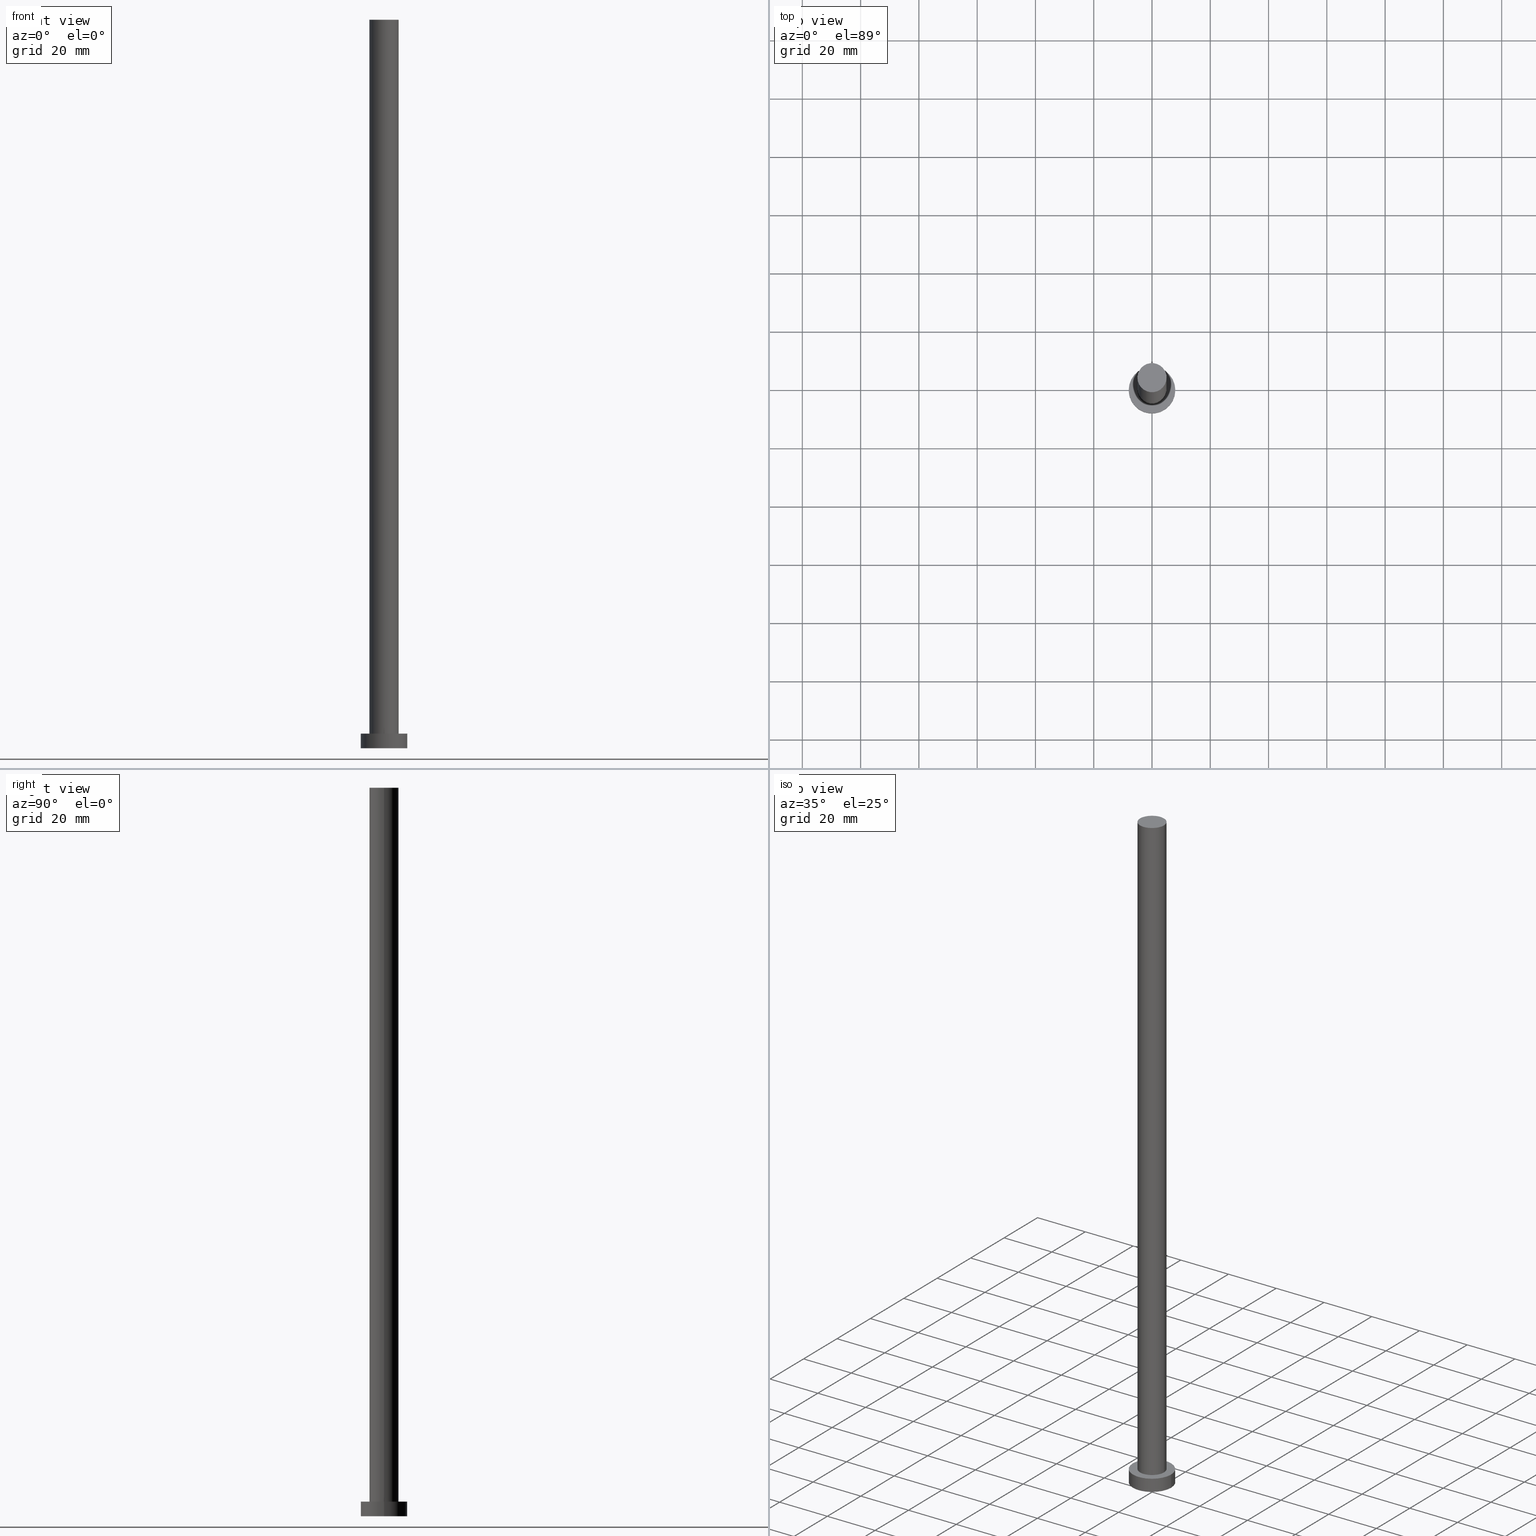
[diagram: canonical four-view strip — front | top / right | iso, engineering-drawing reading convention]
A machine part, canonical four-view strip (front | top / right | iso — engineering-drawing reading convention). The complete STEP part file that produces these views, byte-faithful:
ISO-10303-21;
HEADER;
FILE_DESCRIPTION (( 'STEP AP203' ),
    '1' );
FILE_NAME ('6a87.STEP',
    '2023-02-13T09:59:26',
    ( '' ),
    ( '' ),
    'SwSTEP 2.0',
    'SolidWorks 2019',
    '' );
FILE_SCHEMA (( 'CONFIG_CONTROL_DESIGN' ));
ENDSEC;

DATA;
#1 = CIRCLE ( 'NONE', #31, 8.000000000000000000 ) ;
#2 = DIRECTION ( 'NONE',  ( 1.000000000000000000, 0.000000000000000000, -0.000000000000000000 ) ) ;
#3 = DIRECTION ( 'NONE',  ( 0.000000000000000000, 0.000000000000000000, 1.000000000000000000 ) ) ;
#4 = CIRCLE ( 'NONE', #104, 5.000000000000000888 ) ;
#5 = CC_DESIGN_SECURITY_CLASSIFICATION ( #217, ( #207 ) ) ;
#6 = DIRECTION ( 'NONE',  ( 1.000000000000000000, 0.000000000000000000, 0.000000000000000000 ) ) ;
#7 = DIRECTION ( 'NONE',  ( 1.000000000000000000, 0.000000000000000000, 0.000000000000000000 ) ) ;
#8 = DIRECTION ( 'NONE',  ( 1.000000000000000000, 0.000000000000000000, 0.000000000000000000 ) ) ;
#9 = DIRECTION ( 'NONE',  ( 1.000000000000000000, 0.000000000000000000, -0.000000000000000000 ) ) ;
#10 = PERSON_AND_ORGANIZATION ( #82, #249 ) ;
#11 = CYLINDRICAL_SURFACE ( 'NONE', #169, 5.000000000000000888 ) ;
#12 = ORIENTED_EDGE ( 'NONE', *, *, #142, .F. ) ;
#13 = CARTESIAN_POINT ( 'NONE',  ( 0.000000000000000000, 0.000000000000000000, 5.000000000000000000 ) ) ;
#14 = CARTESIAN_POINT ( 'NONE',  ( 0.000000000000000000, 0.000000000000000000, 250.0000000000000000 ) ) ;
#15 = APPLICATION_PROTOCOL_DEFINITION ( 'international standard', 'config_control_design', 1994, #84 ) ;
#16 = CC_DESIGN_PERSON_AND_ORGANIZATION_ASSIGNMENT ( #128, #208, ( #217 ) ) ;
#17 = VECTOR ( 'NONE', #138, 1000.000000000000000 ) ;
#18 = CARTESIAN_POINT ( 'NONE',  ( 0.000000000000000000, 0.000000000000000000, 5.000000000000000000 ) ) ;
#19 = SHAPE_DEFINITION_REPRESENTATION ( #132, #97 ) ;
#20 = CARTESIAN_POINT ( 'NONE',  ( 0.000000000000000000, 0.000000000000000000, 5.000000000000000000 ) ) ;
#21 = CARTESIAN_POINT ( 'NONE',  ( -8.000000000000000000, 0.000000000000000000, 0.000000000000000000 ) ) ;
#22 = VECTOR ( 'NONE', #203, 1000.000000000000000 ) ;
#23 = CARTESIAN_POINT ( 'NONE',  ( 0.000000000000000000, 0.000000000000000000, 5.000000000000000000 ) ) ;
#24 = EDGE_LOOP ( 'NONE', ( #28, #223, #238, #145 ) ) ;
#25 = PLANE ( 'NONE',  #175 ) ;
#26 = COORDINATED_UNIVERSAL_TIME_OFFSET ( 1, 0, .AHEAD. ) ;
#27 = DIRECTION ( 'NONE',  ( 0.000000000000000000, 0.000000000000000000, 1.000000000000000000 ) ) ;
#28 = ORIENTED_EDGE ( 'NONE', *, *, #191, .F. ) ;
#29 = AXIS2_PLACEMENT_3D ( 'NONE', #18, #158, #106 ) ;
#30 = AXIS2_PLACEMENT_3D ( 'NONE', #13, #114, #190 ) ;
#31 = AXIS2_PLACEMENT_3D ( 'NONE', #23, #110, #6 ) ;
#32 = ORIENTED_EDGE ( 'NONE', *, *, #126, .F. ) ;
#33 = FACE_OUTER_BOUND ( 'NONE', #210, .T. ) ;
#34 = EDGE_LOOP ( 'NONE', ( #209, #246 ) ) ;
#35 = CC_DESIGN_PERSON_AND_ORGANIZATION_ASSIGNMENT ( #143, #160, ( #207 ) ) ;
#36 = ORIENTED_EDGE ( 'NONE', *, *, #154, .T. ) ;
#37 = AXIS2_PLACEMENT_3D ( 'NONE', #202, #88, #204 ) ;
#38 = APPROVAL_DATE_TIME ( #100, #134 ) ;
#39 =( NAMED_UNIT ( * ) SI_UNIT ( $, .STERADIAN. ) SOLID_ANGLE_UNIT ( ) );
#40 = DIRECTION ( 'NONE',  ( -0.000000000000000000, -0.000000000000000000, -1.000000000000000000 ) ) ;
#41 = APPROVAL_PERSON_ORGANIZATION ( #195, #250, #78 ) ;
#42 = EDGE_LOOP ( 'NONE', ( #90, #230 ) ) ;
#43 = CARTESIAN_POINT ( 'NONE',  ( -5.000000000000000888, 0.000000000000000000, 5.000000000000000000 ) ) ;
#44 = CARTESIAN_POINT ( 'NONE',  ( 5.000000000000000888, 6.123233995736767268E-16, 250.0000000000000000 ) ) ;
#45 = FACE_OUTER_BOUND ( 'NONE', #235, .T. ) ;
#46 = APPROVAL_ROLE ( '' ) ;
#47 = LOCAL_TIME ( 10, 59, 26.00000000000000000, #176 ) ;
#48 = VERTEX_POINT ( 'NONE', #183 ) ;
#49 = PLANE ( 'NONE',  #87 ) ;
#50 = MECHANICAL_CONTEXT ( 'NONE', #71, 'mechanical' ) ;
#51 = DIRECTION ( 'NONE',  ( -1.000000000000000000, 0.000000000000000000, 0.000000000000000000 ) ) ;
#52 = LOCAL_TIME ( 10, 59, 26.00000000000000000, #63 ) ;
#53 = ORIENTED_EDGE ( 'NONE', *, *, #137, .F. ) ;
#54 = EDGE_CURVE ( 'NONE', #152, #48, #99, .T. ) ;
#55 = CARTESIAN_POINT ( 'NONE',  ( 0.000000000000000000, 0.000000000000000000, 0.000000000000000000 ) ) ;
#56 = ORIENTED_EDGE ( 'NONE', *, *, #59, .F. ) ;
#57 =( NAMED_UNIT ( * ) PLANE_ANGLE_UNIT ( ) SI_UNIT ( $, .RADIAN. ) );
#58 = ORIENTED_EDGE ( 'NONE', *, *, #214, .F. ) ;
#59 = EDGE_CURVE ( 'NONE', #216, #219, #74, .T. ) ;
#60 = EDGE_LOOP ( 'NONE', ( #53, #107 ) ) ;
#61 = VERTEX_POINT ( 'NONE', #109 ) ;
#62 = APPROVAL_PERSON_ORGANIZATION ( #98, #134, #115 ) ;
#63 = COORDINATED_UNIVERSAL_TIME_OFFSET ( 1, 0, .AHEAD. ) ;
#64 = CARTESIAN_POINT ( 'NONE',  ( -8.000000000000000000, 0.000000000000000000, 5.000000000000000000 ) ) ;
#65 = CARTESIAN_POINT ( 'NONE',  ( 8.000000000000000000, 9.797174393178825657E-16, 0.000000000000000000 ) ) ;
#66 = FACE_BOUND ( 'NONE', #60, .T. ) ;
#67 = SECURITY_CLASSIFICATION_LEVEL ( 'unclassified' ) ;
#68 = CARTESIAN_POINT ( 'NONE',  ( 0.000000000000000000, 0.000000000000000000, 5.000000000000000000 ) ) ;
#69 = CC_DESIGN_APPROVAL ( #250, ( #207 ) ) ;
#70 = CARTESIAN_POINT ( 'NONE',  ( -8.000000000000000000, 0.000000000000000000, 5.000000000000000000 ) ) ;
#71 = APPLICATION_CONTEXT ( 'configuration controlled 3d designs of mechanical parts and assemblies' ) ;
#72 = CYLINDRICAL_SURFACE ( 'NONE', #30, 8.000000000000000000 ) ;
#73 = CC_DESIGN_PERSON_AND_ORGANIZATION_ASSIGNMENT ( #237, #218, ( #211 ) ) ;
#74 = CIRCLE ( 'NONE', #229, 5.000000000000000888 ) ;
#75 = VERTEX_POINT ( 'NONE', #43 ) ;
#76 = LOCAL_TIME ( 10, 59, 26.00000000000000000, #165 ) ;
#77 = APPROVAL ( #240, 'NEUR�EN�' ) ;
#78 = APPROVAL_ROLE ( '' ) ;
#79 = CALENDAR_DATE ( 2023, 13, 2 ) ;
#80 = ADVANCED_FACE ( 'NONE', ( #255 ), #123, .T. ) ;
#81 = CIRCLE ( 'NONE', #222, 8.000000000000000000 ) ;
#82 = PERSON ( 'NEUR�EN�', 'NEUR�EN�', 'NEUR�EN�', ('NEUR�EN�'), ('NEUR�EN�'), ('NEUR�EN�') ) ;
#83 = DATE_AND_TIME ( #231, #192 ) ;
#84 = APPLICATION_CONTEXT ( 'configuration controlled 3d designs of mechanical parts and assemblies' ) ;
#85 = CARTESIAN_POINT ( 'NONE',  ( 0.000000000000000000, 0.000000000000000000, 250.0000000000000000 ) ) ;
#86 = AXIS2_PLACEMENT_3D ( 'NONE', #227, #186, #8 ) ;
#87 = AXIS2_PLACEMENT_3D ( 'NONE', #129, #185, #9 ) ;
#88 = DIRECTION ( 'NONE',  ( -0.000000000000000000, -0.000000000000000000, -1.000000000000000000 ) ) ;
#89 = CALENDAR_DATE ( 2023, 13, 2 ) ;
#90 = ORIENTED_EDGE ( 'NONE', *, *, #244, .F. ) ;
#91 = AXIS2_PLACEMENT_3D ( 'NONE', #136, #182, #239 ) ;
#92 = CC_DESIGN_DATE_AND_TIME_ASSIGNMENT ( #105, #151, ( #200 ) ) ;
#93 = ORIENTED_EDGE ( 'NONE', *, *, #184, .T. ) ;
#94 = LOCAL_TIME ( 10, 59, 26.00000000000000000, #177 ) ;
#95 = CARTESIAN_POINT ( 'NONE',  ( 0.000000000000000000, 0.000000000000000000, 0.000000000000000000 ) ) ;
#96 =( GEOMETRIC_REPRESENTATION_CONTEXT ( 3 ) GLOBAL_UNCERTAINTY_ASSIGNED_CONTEXT ( ( #122 ) ) GLOBAL_UNIT_ASSIGNED_CONTEXT ( ( #178, #57, #39 ) ) REPRESENTATION_CONTEXT ( 'NONE', 'WORKASPACE' ) );
#97 = ADVANCED_BREP_SHAPE_REPRESENTATION ( '6a87', ( #232, #167 ), #96 ) ;
#98 = PERSON_AND_ORGANIZATION ( #82, #249 ) ;
#99 = CIRCLE ( 'NONE', #86, 8.000000000000000000 ) ;
#100 = DATE_AND_TIME ( #79, #94 ) ;
#101 = AXIS2_PLACEMENT_3D ( 'NONE', #150, #189, #7 ) ;
#102 = APPROVAL_STATUS ( 'not_yet_approved' ) ;
#103 = DIRECTION ( 'NONE',  ( -1.000000000000000000, 0.000000000000000000, 0.000000000000000000 ) ) ;
#104 = AXIS2_PLACEMENT_3D ( 'NONE', #68, #135, #130 ) ;
#105 = DATE_AND_TIME ( #201, #52 ) ;
#106 = DIRECTION ( 'NONE',  ( 1.000000000000000000, 0.000000000000000000, 0.000000000000000000 ) ) ;
#107 = ORIENTED_EDGE ( 'NONE', *, *, #193, .F. ) ;
#108 = DIRECTION ( 'NONE',  ( 0.000000000000000000, 0.000000000000000000, 1.000000000000000000 ) ) ;
#109 = CARTESIAN_POINT ( 'NONE',  ( 5.000000000000000888, 6.123233995736767268E-16, 5.000000000000000000 ) ) ;
#110 = DIRECTION ( 'NONE',  ( 0.000000000000000000, 0.000000000000000000, 1.000000000000000000 ) ) ;
#111 = AXIS2_PLACEMENT_3D ( 'NONE', #198, #140, #103 ) ;
#112 = ORIENTED_EDGE ( 'NONE', *, *, #119, .F. ) ;
#113 = APPROVAL_DATE_TIME ( #228, #77 ) ;
#114 = DIRECTION ( 'NONE',  ( -0.000000000000000000, -0.000000000000000000, -1.000000000000000000 ) ) ;
#115 = APPROVAL_ROLE ( '' ) ;
#116 = LINE ( 'NONE', #234, #197 ) ;
#117 = CLOSED_SHELL ( 'NONE', ( #147, #180, #80, #171, #157, #252, #225 ) ) ;
#118 = ORIENTED_EDGE ( 'NONE', *, *, #154, .F. ) ;
#119 = EDGE_CURVE ( 'NONE', #48, #152, #1, .T. ) ;
#120 = ORIENTED_EDGE ( 'NONE', *, *, #191, .T. ) ;
#121 = CARTESIAN_POINT ( 'NONE',  ( -5.000000000000000888, 0.000000000000000000, 250.0000000000000000 ) ) ;
#122 = UNCERTAINTY_MEASURE_WITH_UNIT (LENGTH_MEASURE( 1.000000000000000082E-05 ), #178, 'distance_accuracy_value', 'NONE');
#123 = CYLINDRICAL_SURFACE ( 'NONE', #37, 8.000000000000000000 ) ;
#124 = APPROVAL_PERSON_ORGANIZATION ( #10, #77, #46 ) ;
#125 = DIRECTION ( 'NONE',  ( 0.000000000000000000, 0.000000000000000000, 1.000000000000000000 ) ) ;
#126 = EDGE_CURVE ( 'NONE', #219, #216, #224, .T. ) ;
#127 = ORIENTED_EDGE ( 'NONE', *, *, #119, .T. ) ;
#128 = PERSON_AND_ORGANIZATION ( #82, #249 ) ;
#129 = CARTESIAN_POINT ( 'NONE',  ( 0.000000000000000000, 0.000000000000000000, 250.0000000000000000 ) ) ;
#130 = DIRECTION ( 'NONE',  ( 1.000000000000000000, 0.000000000000000000, 0.000000000000000000 ) ) ;
#131 = VERTEX_POINT ( 'NONE', #65 ) ;
#132 = PRODUCT_DEFINITION_SHAPE ( 'NONE', 'NONE',  #200 ) ;
#133 = ORIENTED_EDGE ( 'NONE', *, *, #142, .T. ) ;
#134 = APPROVAL ( #102, 'NEUR�EN�' ) ;
#135 = DIRECTION ( 'NONE',  ( 0.000000000000000000, 0.000000000000000000, 1.000000000000000000 ) ) ;
#136 = CARTESIAN_POINT ( 'NONE',  ( 0.000000000000000000, 0.000000000000000000, 0.000000000000000000 ) ) ;
#137 = EDGE_CURVE ( 'NONE', #75, #61, #141, .T. ) ;
#138 = DIRECTION ( 'NONE',  ( -0.000000000000000000, -0.000000000000000000, -1.000000000000000000 ) ) ;
#139 = ORIENTED_EDGE ( 'NONE', *, *, #137, .T. ) ;
#140 = DIRECTION ( 'NONE',  ( -0.000000000000000000, -0.000000000000000000, -1.000000000000000000 ) ) ;
#141 = CIRCLE ( 'NONE', #29, 5.000000000000000888 ) ;
#142 = EDGE_CURVE ( 'NONE', #216, #75, #242, .T. ) ;
#143 = PERSON_AND_ORGANIZATION ( #82, #249 ) ;
#144 = CARTESIAN_POINT ( 'NONE',  ( -5.000000000000000888, 0.000000000000000000, 250.0000000000000000 ) ) ;
#145 = ORIENTED_EDGE ( 'NONE', *, *, #244, .T. ) ;
#146 = VERTEX_POINT ( 'NONE', #21 ) ;
#147 = ADVANCED_FACE ( 'NONE', ( #172 ), #11, .T. ) ;
#148 = LINE ( 'NONE', #220, #17 ) ;
#149 = CC_DESIGN_PERSON_AND_ORGANIZATION_ASSIGNMENT ( #253, #181, ( #200 ) ) ;
#150 = CARTESIAN_POINT ( 'NONE',  ( 0.000000000000000000, 0.000000000000000000, 0.000000000000000000 ) ) ;
#151 = DATE_TIME_ROLE ( 'creation_date' ) ;
#152 = VERTEX_POINT ( 'NONE', #70 ) ;
#153 = PLANE ( 'NONE',  #91 ) ;
#154 = EDGE_CURVE ( 'NONE', #219, #61, #148, .T. ) ;
#155 = DIRECTION ( 'NONE',  ( 1.000000000000000000, 0.000000000000000000, 0.000000000000000000 ) ) ;
#156 = DIRECTION ( 'NONE',  ( 1.000000000000000000, 0.000000000000000000, 0.000000000000000000 ) ) ;
#157 = ADVANCED_FACE ( 'NONE', ( #236 ), #153, .F. ) ;
#158 = DIRECTION ( 'NONE',  ( 0.000000000000000000, 0.000000000000000000, 1.000000000000000000 ) ) ;
#159 = EDGE_LOOP ( 'NONE', ( #32, #36, #174, #12 ) ) ;
#160 = PERSON_AND_ORGANIZATION_ROLE ( 'creator' ) ;
#161 = CALENDAR_DATE ( 2023, 13, 2 ) ;
#162 = CC_DESIGN_PERSON_AND_ORGANIZATION_ASSIGNMENT ( #164, #243, ( #207 ) ) ;
#163 = FACE_OUTER_BOUND ( 'NONE', #34, .T. ) ;
#164 = PERSON_AND_ORGANIZATION ( #82, #249 ) ;
#165 = COORDINATED_UNIVERSAL_TIME_OFFSET ( 1, 0, .AHEAD. ) ;
#166 = FACE_OUTER_BOUND ( 'NONE', #248, .T. ) ;
#167 = AXIS2_PLACEMENT_3D ( 'NONE', #55, #213, #247 ) ;
#168 = PRODUCT_RELATED_PRODUCT_CATEGORY ( 'detail', '', ( #211 ) ) ;
#169 = AXIS2_PLACEMENT_3D ( 'NONE', #14, #173, #51 ) ;
#170 = CC_DESIGN_APPROVAL ( #134, ( #200 ) ) ;
#171 = ADVANCED_FACE ( 'NONE', ( #66, #45 ), #25, .T. ) ;
#172 = FACE_OUTER_BOUND ( 'NONE', #159, .T. ) ;
#173 = DIRECTION ( 'NONE',  ( -0.000000000000000000, -0.000000000000000000, -1.000000000000000000 ) ) ;
#174 = ORIENTED_EDGE ( 'NONE', *, *, #193, .T. ) ;
#175 = AXIS2_PLACEMENT_3D ( 'NONE', #20, #108, #2 ) ;
#176 = COORDINATED_UNIVERSAL_TIME_OFFSET ( 1, 0, .AHEAD. ) ;
#177 = COORDINATED_UNIVERSAL_TIME_OFFSET ( 1, 0, .AHEAD. ) ;
#178 =( LENGTH_UNIT ( ) NAMED_UNIT ( * ) SI_UNIT ( .MILLI., .METRE. ) );
#179 = AXIS2_PLACEMENT_3D ( 'NONE', #85, #125, #155 ) ;
#180 = ADVANCED_FACE ( 'NONE', ( #166 ), #72, .T. ) ;
#181 = PERSON_AND_ORGANIZATION_ROLE ( 'creator' ) ;
#182 = DIRECTION ( 'NONE',  ( 0.000000000000000000, 0.000000000000000000, 1.000000000000000000 ) ) ;
#183 = CARTESIAN_POINT ( 'NONE',  ( 8.000000000000000000, 9.797174393178825657E-16, 5.000000000000000000 ) ) ;
#184 = EDGE_CURVE ( 'NONE', #131, #146, #254, .T. ) ;
#185 = DIRECTION ( 'NONE',  ( 0.000000000000000000, 0.000000000000000000, 1.000000000000000000 ) ) ;
#186 = DIRECTION ( 'NONE',  ( 0.000000000000000000, 0.000000000000000000, 1.000000000000000000 ) ) ;
#187 = APPROVAL_DATE_TIME ( #205, #250 ) ;
#188 = DIRECTION ( 'NONE',  ( 1.000000000000000000, 0.000000000000000000, 0.000000000000000000 ) ) ;
#189 = DIRECTION ( 'NONE',  ( 0.000000000000000000, 0.000000000000000000, 1.000000000000000000 ) ) ;
#190 = DIRECTION ( 'NONE',  ( -1.000000000000000000, 0.000000000000000000, 0.000000000000000000 ) ) ;
#191 = EDGE_CURVE ( 'NONE', #48, #131, #116, .T. ) ;
#192 = LOCAL_TIME ( 10, 59, 26.00000000000000000, #26 ) ;
#193 = EDGE_CURVE ( 'NONE', #61, #75, #4, .T. ) ;
#194 = DIRECTION ( 'NONE',  ( -0.000000000000000000, -0.000000000000000000, -1.000000000000000000 ) ) ;
#195 = PERSON_AND_ORGANIZATION ( #82, #249 ) ;
#196 = CC_DESIGN_DATE_AND_TIME_ASSIGNMENT ( #83, #215, ( #217 ) ) ;
#197 = VECTOR ( 'NONE', #194, 1000.000000000000000 ) ;
#198 = CARTESIAN_POINT ( 'NONE',  ( 0.000000000000000000, 0.000000000000000000, 250.0000000000000000 ) ) ;
#199 = ORIENTED_EDGE ( 'NONE', *, *, #54, .T. ) ;
#200 = PRODUCT_DEFINITION ( 'NEZN�M�', '', #207, #241 ) ;
#201 = CALENDAR_DATE ( 2023, 13, 2 ) ;
#202 = CARTESIAN_POINT ( 'NONE',  ( 0.000000000000000000, 0.000000000000000000, 5.000000000000000000 ) ) ;
#203 = DIRECTION ( 'NONE',  ( -0.000000000000000000, -0.000000000000000000, -1.000000000000000000 ) ) ;
#204 = DIRECTION ( 'NONE',  ( -1.000000000000000000, 0.000000000000000000, 0.000000000000000000 ) ) ;
#205 = DATE_AND_TIME ( #89, #47 ) ;
#206 = CARTESIAN_POINT ( 'NONE',  ( 0.000000000000000000, 0.000000000000000000, 250.0000000000000000 ) ) ;
#207 = PRODUCT_DEFINITION_FORMATION_WITH_SPECIFIED_SOURCE ( 'LIBOVOLN�', '', #211, .NOT_KNOWN. ) ;
#208 = PERSON_AND_ORGANIZATION_ROLE ( 'classification_officer' ) ;
#209 = ORIENTED_EDGE ( 'NONE', *, *, #59, .T. ) ;
#210 = EDGE_LOOP ( 'NONE', ( #118, #56, #133, #139 ) ) ;
#211 = PRODUCT ( '6a87', '6a87', '', ( #50 ) ) ;
#212 = LINE ( 'NONE', #64, #245 ) ;
#213 = DIRECTION ( 'NONE',  ( 0.000000000000000000, 0.000000000000000000, 1.000000000000000000 ) ) ;
#214 = EDGE_CURVE ( 'NONE', #152, #146, #212, .T. ) ;
#215 = DATE_TIME_ROLE ( 'classification_date' ) ;
#216 = VERTEX_POINT ( 'NONE', #121 ) ;
#217 = SECURITY_CLASSIFICATION ( '', '', #67 ) ;
#218 = PERSON_AND_ORGANIZATION_ROLE ( 'design_owner' ) ;
#219 = VERTEX_POINT ( 'NONE', #44 ) ;
#220 = CARTESIAN_POINT ( 'NONE',  ( 5.000000000000000888, 6.123233995736767268E-16, 250.0000000000000000 ) ) ;
#221 = CYLINDRICAL_SURFACE ( 'NONE', #111, 5.000000000000000888 ) ;
#222 = AXIS2_PLACEMENT_3D ( 'NONE', #95, #3, #156 ) ;
#223 = ORIENTED_EDGE ( 'NONE', *, *, #54, .F. ) ;
#224 = CIRCLE ( 'NONE', #179, 5.000000000000000888 ) ;
#225 = ADVANCED_FACE ( 'NONE', ( #163 ), #49, .T. ) ;
#226 = CC_DESIGN_APPROVAL ( #77, ( #217 ) ) ;
#227 = CARTESIAN_POINT ( 'NONE',  ( 0.000000000000000000, 0.000000000000000000, 5.000000000000000000 ) ) ;
#228 = DATE_AND_TIME ( #161, #76 ) ;
#229 = AXIS2_PLACEMENT_3D ( 'NONE', #206, #27, #188 ) ;
#230 = ORIENTED_EDGE ( 'NONE', *, *, #184, .F. ) ;
#231 = CALENDAR_DATE ( 2023, 13, 2 ) ;
#232 = MANIFOLD_SOLID_BREP ( 'P�idat vysunut�m3', #117 ) ;
#233 = APPLICATION_PROTOCOL_DEFINITION ( 'international standard', 'config_control_design', 1994, #71 ) ;
#234 = CARTESIAN_POINT ( 'NONE',  ( 8.000000000000000000, 9.797174393178825657E-16, 5.000000000000000000 ) ) ;
#235 = EDGE_LOOP ( 'NONE', ( #199, #127 ) ) ;
#236 = FACE_OUTER_BOUND ( 'NONE', #42, .T. ) ;
#237 = PERSON_AND_ORGANIZATION ( #82, #249 ) ;
#238 = ORIENTED_EDGE ( 'NONE', *, *, #214, .T. ) ;
#239 = DIRECTION ( 'NONE',  ( 1.000000000000000000, 0.000000000000000000, -0.000000000000000000 ) ) ;
#240 = APPROVAL_STATUS ( 'not_yet_approved' ) ;
#241 = DESIGN_CONTEXT ( 'detailed design', #84, 'design' ) ;
#242 = LINE ( 'NONE', #144, #22 ) ;
#243 = PERSON_AND_ORGANIZATION_ROLE ( 'design_supplier' ) ;
#244 = EDGE_CURVE ( 'NONE', #146, #131, #81, .T. ) ;
#245 = VECTOR ( 'NONE', #40, 1000.000000000000000 ) ;
#246 = ORIENTED_EDGE ( 'NONE', *, *, #126, .T. ) ;
#247 = DIRECTION ( 'NONE',  ( 1.000000000000000000, 0.000000000000000000, 0.000000000000000000 ) ) ;
#248 = EDGE_LOOP ( 'NONE', ( #112, #120, #93, #58 ) ) ;
#249 = ORGANIZATION ( 'NEUR�EN�', 'NEUR�EN�', '' ) ;
#250 = APPROVAL ( #251, 'NEUR�EN�' ) ;
#251 = APPROVAL_STATUS ( 'not_yet_approved' ) ;
#252 = ADVANCED_FACE ( 'NONE', ( #33 ), #221, .T. ) ;
#253 = PERSON_AND_ORGANIZATION ( #82, #249 ) ;
#254 = CIRCLE ( 'NONE', #101, 8.000000000000000000 ) ;
#255 = FACE_OUTER_BOUND ( 'NONE', #24, .T. ) ;
ENDSEC;
END-ISO-10303-21;
